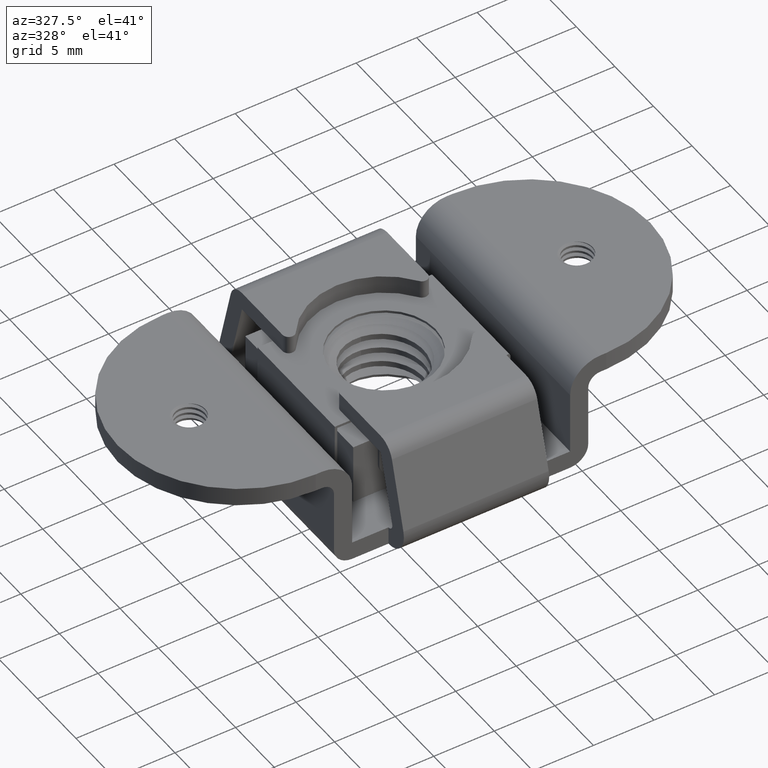
[diagram: clean part render]
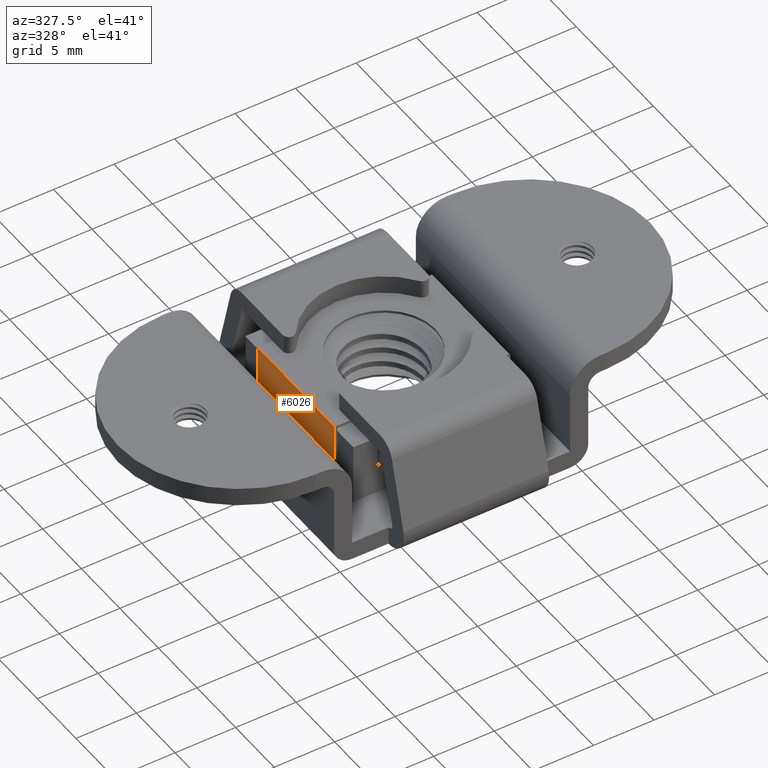
[diagram: same view with one face highlighted and labeled with its STEP entity id]
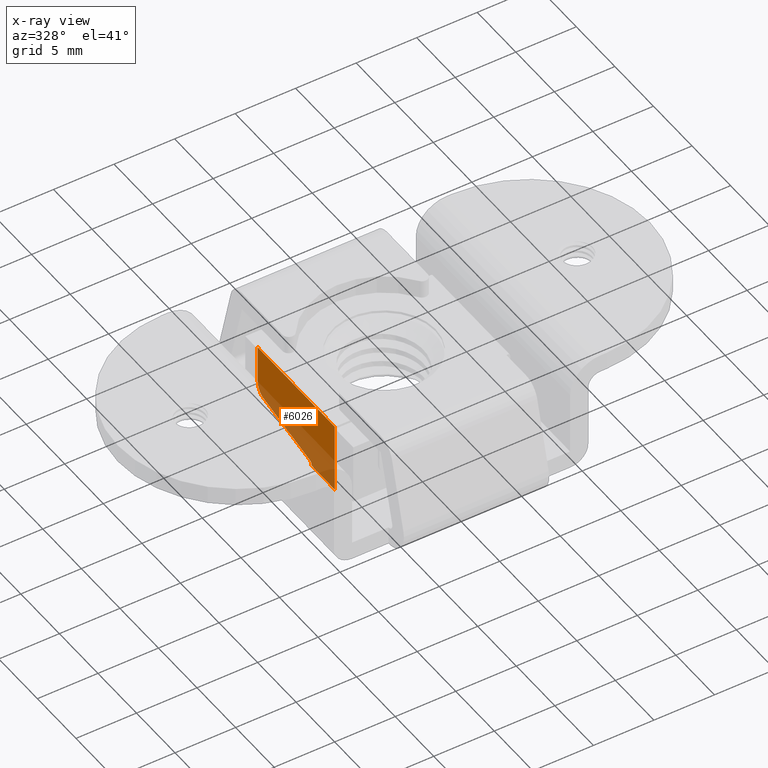
[diagram: x-ray of the same camera — body ghosted, the highlighted face saturated]
A machine part, auxiliary view. The second image highlights one B-rep face of the part: STEP entity #6026.
The next image is the same camera in x-ray: the body ghosted, the highlighted face saturated — about 37% of this face is hidden behind the body in this view.
In plain terms, the highlighted planar face has unit normal (-1, -0, -0).
Its self-contained STEP definition (entity closure, byte-faithful):
#201 = VERTEX_POINT ( 'NONE', #666 ) ;
#484 = CARTESIAN_POINT ( 'NONE',  ( -7.249999999999849900, -2.000000000000719900, -5.742524737070310100 ) ) ;
#496 = EDGE_CURVE ( 'NONE', #4870, #6178, #4625, .T. ) ;
#497 = DIRECTION ( 'NONE',  ( -1.420197293100500000E-013, 1.000000000000000000, 0.0000000000000000000 ) ) ;
#633 = CARTESIAN_POINT ( 'NONE',  ( -7.250000000000779800, 4.209529088730199000, -4.169386623843459800 ) ) ;
#666 = CARTESIAN_POINT ( 'NONE',  ( -7.250000000000910400, 4.999999999999280600, 0.0000000000000000000 ) ) ;
#783 = VECTOR ( 'NONE', #2582, 1000.000000000000100 ) ;
#855 = ORIENTED_EDGE ( 'NONE', *, *, #4643, .T. ) ;
#956 = EDGE_LOOP ( 'NONE', ( #855, #2594, #3497, #4653, #4998, #6049, #5282, #1572 ) ) ;
#1007 = CARTESIAN_POINT ( 'NONE',  ( -7.249999999999490200, -5.000000000000720300, 0.0000000000000000000 ) ) ;
#1128 = VECTOR ( 'NONE', #5858, 1000.000000000000000 ) ;
#1224 = DIRECTION ( 'NONE',  ( -1.000000000000000000, -1.416644579421700000E-013, -0.0000000000000000000 ) ) ;
#1254 = VERTEX_POINT ( 'NONE', #5999 ) ;
#1287 = VECTOR ( 'NONE', #4312, 999.9999999999998900 ) ;
#1328 = CARTESIAN_POINT ( 'NONE',  ( -7.250000000000910400, 4.999999999999280600, -3.191584209765839100 ) ) ;
#1572 = ORIENTED_EDGE ( 'NONE', *, *, #2709, .T. ) ;
#1624 = LINE ( 'NONE', #633, #1287 ) ;
#1885 = DIRECTION ( 'NONE',  ( 1.000000000000000000, 1.685192728727990200E-013, 5.833225888146280500E-015 ) ) ;
#1959 = AXIS2_PLACEMENT_3D ( 'NONE', #5045, #1885, #5569 ) ;
#1973 = VECTOR ( 'NONE', #4166, 1000.000000000000100 ) ;
#1991 = EDGE_CURVE ( 'NONE', #2945, #201, #6329, .T. ) ;
#2120 = EDGE_CURVE ( 'NONE', #201, #2700, #4106, .T. ) ;
#2150 = CARTESIAN_POINT ( 'NONE',  ( -7.249962533894610300, -2.000000000000719900, -5.803871181123800400 ) ) ;
#2163 = DIRECTION ( 'NONE',  ( -1.000000000000000000, -1.358912982141217900E-013, -7.063863078242830700E-016 ) ) ;
#2293 = CIRCLE ( 'NONE', #1959, 0.3000000000000002100 ) ;
#2386 = AXIS2_PLACEMENT_3D ( 'NONE', #5951, #1224, #4919 ) ;
#2582 = DIRECTION ( 'NONE',  ( 6.455364726400150400E-006, 7.839832935692370500E-013, -0.9999999999791641100 ) ) ;
#2594 = ORIENTED_EDGE ( 'NONE', *, *, #496, .T. ) ;
#2680 = CARTESIAN_POINT ( 'NONE',  ( -7.249962533894189300, -4.999999999996170200, -5.803871181123700000 ) ) ;
#2700 = VERTEX_POINT ( 'NONE', #1328 ) ;
#2709 = EDGE_CURVE ( 'NONE', #4734, #1254, #2293, .T. ) ;
#2945 = VERTEX_POINT ( 'NONE', #5403 ) ;
#3054 = CARTESIAN_POINT ( 'NONE',  ( -7.250000000000779800, 4.209529088730199000, -4.169386623843459800 ) ) ;
#3497 = ORIENTED_EDGE ( 'NONE', *, *, #6836, .F. ) ;
#3659 = CARTESIAN_POINT ( 'NONE',  ( -7.249999999999490200, -5.000000000000720300, 0.0000000000000000000 ) ) ;
#3838 = PLANE ( 'NONE',  #2386 ) ;
#3975 = EDGE_CURVE ( 'NONE', #2700, #5319, #6407, .T. ) ;
#4106 = LINE ( 'NONE', #5324, #1128 ) ;
#4166 = DIRECTION ( 'NONE',  ( 0.0006107297469378248100, 0.0000000000000000000, -0.9999998135045706800 ) ) ;
#4312 = DIRECTION ( 'NONE',  ( 1.391602688045129800E-013, -0.9778024140774096400, -0.2095290887308734500 ) ) ;
#4625 = B_SPLINE_CURVE_WITH_KNOTS ( 'NONE', 3,
 ( #2150, #5300, #5830, #2680 ),
 .UNSPECIFIED., .F., .F.,
 ( 4, 4 ),
 ( 0.0000000000000000000, 1.000000000000000000 ),
 .UNSPECIFIED. ) ;
#4643 = EDGE_CURVE ( 'NONE', #1254, #4870, #6009, .T. ) ;
#4653 = ORIENTED_EDGE ( 'NONE', *, *, #1991, .T. ) ;
#4690 = CARTESIAN_POINT ( 'NONE',  ( -7.249962533894189300, -4.999999999996170200, -5.803871181123700000 ) ) ;
#4734 = VERTEX_POINT ( 'NONE', #6649 ) ;
#4870 = VERTEX_POINT ( 'NONE', #6213 ) ;
#4919 = DIRECTION ( 'NONE',  ( 0.0000000000000000000, 0.0000000000000000000, -1.000000000000000000 ) ) ;
#4998 = ORIENTED_EDGE ( 'NONE', *, *, #2120, .T. ) ;
#5007 = FACE_OUTER_BOUND ( 'NONE', #956, .T. ) ;
#5045 = CARTESIAN_POINT ( 'NONE',  ( -7.250000000000000000, -1.700000000000719800, -5.742524737070294100 ) ) ;
#5282 = ORIENTED_EDGE ( 'NONE', *, *, #5952, .T. ) ;
#5300 = CARTESIAN_POINT ( 'NONE',  ( -7.249999999999775300, -2.999999999999203700, -5.803871181123800400 ) ) ;
#5317 = CARTESIAN_POINT ( 'NONE',  ( -7.250000000000779800, 3.999999999999300100, -3.191584209765860000 ) ) ;
#5319 = VERTEX_POINT ( 'NONE', #3054 ) ;
#5324 = CARTESIAN_POINT ( 'NONE',  ( -7.250000000000910400, 4.999999999999280600, 0.0000000000000000000 ) ) ;
#5403 = CARTESIAN_POINT ( 'NONE',  ( -7.249999999999490200, -5.000000000000720300, 0.0000000000000000000 ) ) ;
#5569 = DIRECTION ( 'NONE',  ( 2.891205793294676200E-014, -0.2095290887308666500, 0.9778024140774109800 ) ) ;
#5830 = CARTESIAN_POINT ( 'NONE',  ( -7.249999999999633200, -3.999999999997686700, -5.803871181123800400 ) ) ;
#5853 = DIRECTION ( 'NONE',  ( -1.361757928641819600E-013, 1.000000000000000000, 1.778091562876261400E-014 ) ) ;
#5858 = DIRECTION ( 'NONE',  ( 0.0000000000000000000, 0.0000000000000000000, -1.000000000000000000 ) ) ;
#5951 = CARTESIAN_POINT ( 'NONE',  ( -7.250000000001050700, 5.999999999999289500, 0.5803871181123808600 ) ) ;
#5952 = EDGE_CURVE ( 'NONE', #5319, #4734, #1624, .T. ) ;
#5994 = VECTOR ( 'NONE', #497, 1000.000000000000000 ) ;
#5999 = CARTESIAN_POINT ( 'NONE',  ( -7.249999999999849900, -2.000000000000719900, -5.742524737070270100 ) ) ;
#6009 = LINE ( 'NONE', #484, #1973 ) ;
#6024 = AXIS2_PLACEMENT_3D ( 'NONE', #5317, #2163, #5853 ) ;
#6026 = ADVANCED_FACE ( 'NONE', ( #5007 ), #3838, .T. ) ;
#6049 = ORIENTED_EDGE ( 'NONE', *, *, #3975, .T. ) ;
#6178 = VERTEX_POINT ( 'NONE', #4690 ) ;
#6213 = CARTESIAN_POINT ( 'NONE',  ( -7.249962533894610300, -2.000000000000719900, -5.803871181123800400 ) ) ;
#6329 = LINE ( 'NONE', #3659, #5994 ) ;
#6382 = LINE ( 'NONE', #1007, #783 ) ;
#6407 = CIRCLE ( 'NONE', #6024, 0.9999999999999809000 ) ;
#6649 = CARTESIAN_POINT ( 'NONE',  ( -7.250000000000000000, -1.762858726619980000, -5.449184012847069900 ) ) ;
#6836 = EDGE_CURVE ( 'NONE', #2945, #6178, #6382, .T. ) ;